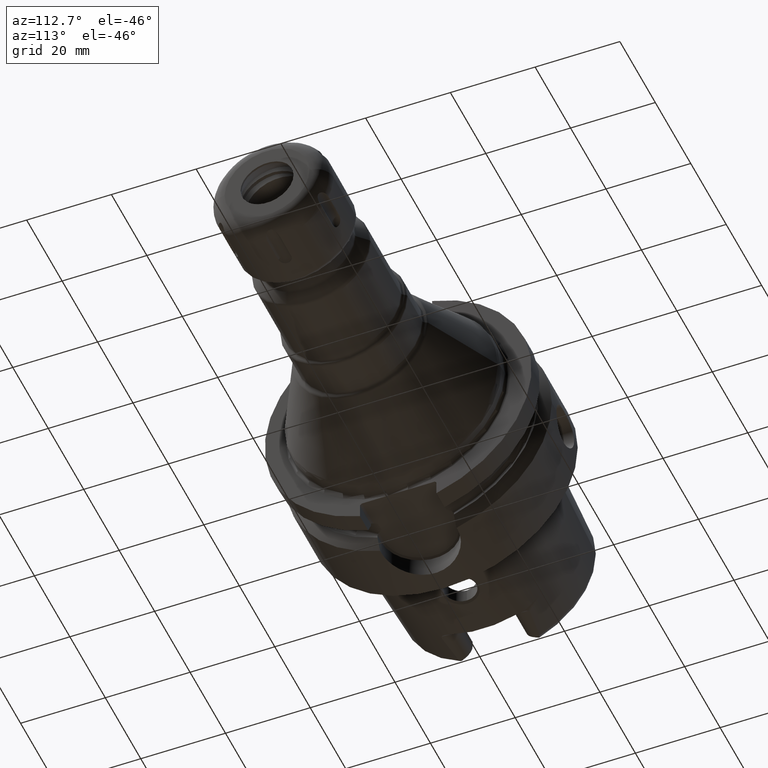
[diagram: clean part render]
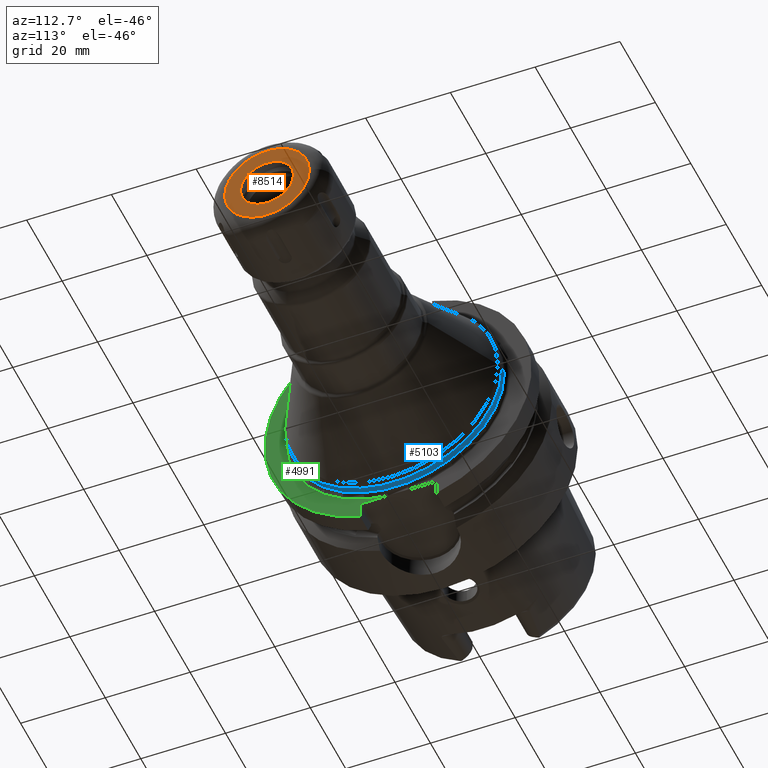
[diagram: same view with three faces highlighted in distinct colors, each labeled with its STEP entity id]
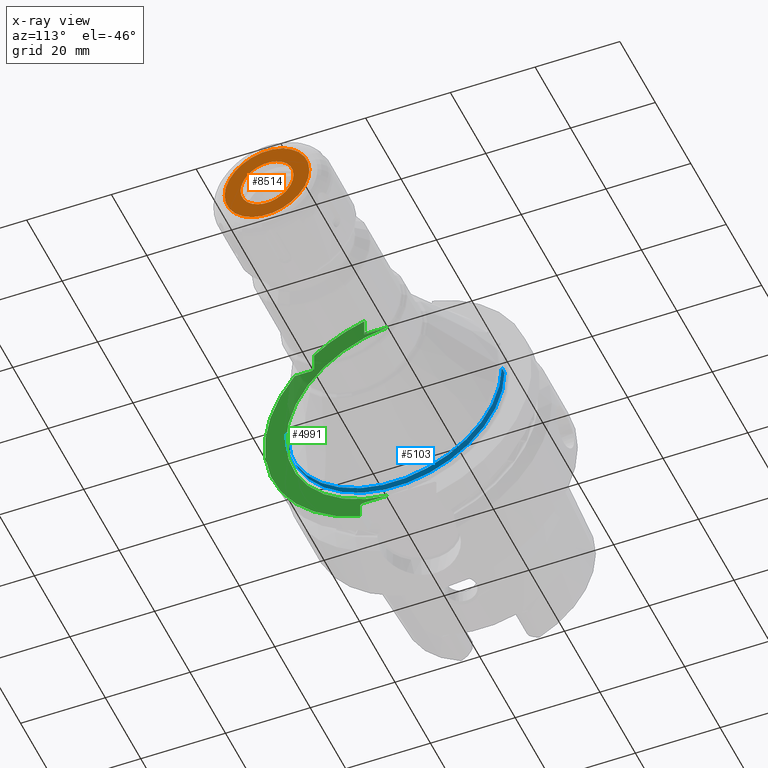
[diagram: x-ray of the same camera — body ghosted, the three highlighted faces saturated]
A machine part, auxiliary view with three faces highlighted in distinct colors.
The next image is the same camera in x-ray (body ghosted, the three faces saturated) — at least one of them is partly hidden behind the body in this view.
Their STEP definitions:

[orange] entity #8514 — the highlighted planar face has unit normal (-1, 0, 0).
#7259=CARTESIAN_POINT('',(1.78E1,0.E0,0.E0));
#7260=DIRECTION('',(1.E0,0.E0,0.E0));
#7261=DIRECTION('',(0.E0,1.E0,0.E0));
#7262=AXIS2_PLACEMENT_3D('',#7259,#7260,#7261);
#7341=CARTESIAN_POINT('',(1.78E1,0.E0,0.E0));
#7342=DIRECTION('',(-1.E0,0.E0,0.E0));
#7343=DIRECTION('',(0.E0,1.E0,0.E0));
#7344=AXIS2_PLACEMENT_3D('',#7341,#7342,#7343);
#7498=CARTESIAN_POINT('',(1.78E1,0.E0,0.E0));
#7499=DIRECTION('',(-1.E0,0.E0,0.E0));
#7500=DIRECTION('',(0.E0,1.E0,0.E0));
#7501=AXIS2_PLACEMENT_3D('',#7498,#7499,#7500);
#7503=CARTESIAN_POINT('',(1.78E1,0.E0,0.E0));
#7504=DIRECTION('',(-1.E0,0.E0,0.E0));
#7505=DIRECTION('',(0.E0,-1.E0,0.E0));
#7506=AXIS2_PLACEMENT_3D('',#7503,#7504,#7505);
#8041=CARTESIAN_POINT('',(1.78E1,1.E1,0.E0));
#8043=VERTEX_POINT('',#8041);
#8051=CARTESIAN_POINT('',(1.78E1,-1.E1,0.E0));
#8053=VERTEX_POINT('',#8051);
#8171=CARTESIAN_POINT('',(1.78E1,6.25E0,0.E0));
#8172=CARTESIAN_POINT('',(1.78E1,-6.25E0,0.E0));
#8173=VERTEX_POINT('',#8171);
#8174=VERTEX_POINT('',#8172);
#8499=CARTESIAN_POINT('',(1.78E1,0.E0,0.E0));
#8500=DIRECTION('',(-1.E0,0.E0,0.E0));
#8501=DIRECTION('',(0.E0,1.E0,0.E0));
#8502=AXIS2_PLACEMENT_3D('',#8499,#8500,#8501);
#8503=PLANE('',#8502);
#8504=ORIENTED_EDGE('',*,*,#8317,.F.);
#8505=ORIENTED_EDGE('',*,*,#8381,.T.);
#8506=EDGE_LOOP('',(#8504,#8505));
#8507=FACE_OUTER_BOUND('',#8506,.F.);
#8509=ORIENTED_EDGE('',*,*,#8508,.F.);
#8511=ORIENTED_EDGE('',*,*,#8510,.F.);
#8512=EDGE_LOOP('',(#8509,#8511));
#8513=FACE_BOUND('',#8512,.F.);
#8514=ADVANCED_FACE('',(#8507,#8513),#8503,.F.);
#7263=CIRCLE('',#7262,1.E1);
#7345=CIRCLE('',#7344,1.E1);
#7502=CIRCLE('',#7501,6.25E0);
#7507=CIRCLE('',#7506,6.25E0);
#8317=EDGE_CURVE('',#8043,#8053,#7263,.T.);
#8381=EDGE_CURVE('',#8043,#8053,#7345,.T.);
#8508=EDGE_CURVE('',#8173,#8174,#7502,.T.);
#8510=EDGE_CURVE('',#8174,#8173,#7507,.T.);

[blue] entity #5103 — the highlighted cylindrical surface (partial cylindrical patch) has radius 25.5 mm, axis along (1, 0, 0).
#1544=CARTESIAN_POINT('',(2.7E1,0.E0,0.E0));
#1545=DIRECTION('',(1.E0,0.E0,0.E0));
#1546=DIRECTION('',(0.E0,-1.E0,0.E0));
#1547=AXIS2_PLACEMENT_3D('',#1544,#1545,#1546);
#1598=CARTESIAN_POINT('',(2.850315899728E1,0.E0,0.E0));
#1599=DIRECTION('',(-1.E0,0.E0,0.E0));
#1600=DIRECTION('',(0.E0,1.E0,0.E0));
#1601=AXIS2_PLACEMENT_3D('',#1598,#1599,#1600);
#1603=DIRECTION('',(-1.E0,0.E0,1.065653858250E-12));
#1604=VECTOR('',#1603,1.503158997277E0);
#1605=CARTESIAN_POINT('',(2.850315899728E1,2.55E1,-1.211563834686E-13));
#1606=LINE('',#1605,#1604);
#1607=DIRECTION('',(-1.E0,0.E0,-1.574354096366E-12));
#1608=VECTOR('',#1607,1.503158997277E0);
#1609=CARTESIAN_POINT('',(2.850315899728E1,-2.55E1,1.315715395435E-13));
#1610=LINE('',#1609,#1608);
#3381=CARTESIAN_POINT('',(2.850315899728E1,2.55E1,0.E0));
#3382=CARTESIAN_POINT('',(2.850315899728E1,-2.55E1,0.E0));
#3383=VERTEX_POINT('',#3381);
#3384=VERTEX_POINT('',#3382);
#3394=CARTESIAN_POINT('',(2.7E1,-2.55E1,0.E0));
#3396=VERTEX_POINT('',#3394);
#3399=CARTESIAN_POINT('',(2.7E1,2.55E1,0.E0));
#3400=VERTEX_POINT('',#3399);
#5092=CARTESIAN_POINT('',(2.2638E1,0.E0,0.E0));
#5093=DIRECTION('',(1.E0,0.E0,0.E0));
#5094=DIRECTION('',(0.E0,-1.E0,0.E0));
#5095=AXIS2_PLACEMENT_3D('',#5092,#5093,#5094);
#5096=CYLINDRICAL_SURFACE('',#5095,2.55E1);
#5097=ORIENTED_EDGE('',*,*,#5083,.F.);
#5098=ORIENTED_EDGE('',*,*,#5058,.T.);
#5099=ORIENTED_EDGE('',*,*,#5020,.F.);
#5100=ORIENTED_EDGE('',*,*,#5054,.F.);
#5101=EDGE_LOOP('',(#5097,#5098,#5099,#5100));
#5102=FACE_OUTER_BOUND('',#5101,.F.);
#5103=ADVANCED_FACE('',(#5102),#5096,.T.);
#1548=CIRCLE('',#1547,2.55E1);
#1602=CIRCLE('',#1601,2.55E1);
#5020=EDGE_CURVE('',#3396,#3400,#1548,.T.);
#5054=EDGE_CURVE('',#3384,#3396,#1610,.T.);
#5058=EDGE_CURVE('',#3383,#3400,#1606,.T.);
#5083=EDGE_CURVE('',#3383,#3384,#1602,.T.);

[green] entity #4991 — the highlighted planar face has unit normal (1, 0, 0).
#1482=CARTESIAN_POINT('',(2.6E1,0.E0,0.E0));
#1483=DIRECTION('',(1.E0,0.E0,0.E0));
#1484=DIRECTION('',(0.E0,-1.E0,0.E0));
#1485=AXIS2_PLACEMENT_3D('',#1482,#1483,#1484);
#1487=DIRECTION('',(0.E0,-9.999999999996E-1,9.431598091803E-7));
#1488=VECTOR('',#1487,6.317547621911E0);
#1489=CARTESIAN_POINT('',(2.6E1,-2.299952378091E0,-2.640000595846E1));
#1490=LINE('',#1489,#1488);
#1491=DIRECTION('',(0.E0,0.E0,1.E0));
#1492=VECTOR('',#1491,3.381694679888E0);
#1493=CARTESIAN_POINT('',(2.6E1,-9.0175E0,-3.018169467989E1));
#1494=LINE('',#1493,#1492);
#1495=DIRECTION('',(0.E0,1.E0,0.E0));
#1496=VECTOR('',#1495,4.208689662367E0);
#1497=CARTESIAN_POINT('',(2.6E1,-2.445868966237E1,1.985E1));
#1498=LINE('',#1497,#1496);
#1499=DIRECTION('',(0.E0,0.E0,-1.E0));
#1500=VECTOR('',#1499,4.208689662367E0);
#1501=CARTESIAN_POINT('',(2.6E1,-1.985E1,2.445868966237E1));
#1502=LINE('',#1501,#1500);
#1503=DIRECTION('',(0.E0,0.E0,-1.E0));
#1504=VECTOR('',#1503,4.062594993697E0);
#1505=CARTESIAN_POINT('',(2.6E1,-8.0175E0,3.046259499370E1));
#1506=LINE('',#1505,#1504);
#1507=DIRECTION('',(0.E0,9.999999999995E-1,1.027498776599E-6));
#1508=VECTOR('',#1507,5.717547031017E0);
#1509=CARTESIAN_POINT('',(2.6E1,-8.0175E0,2.64E1));
#1510=LINE('',#1509,#1508);
#1511=CARTESIAN_POINT('',(2.6E1,0.E0,0.E0));
#1512=DIRECTION('',(1.E0,0.E0,0.E0));
#1513=DIRECTION('',(0.E0,-8.679474533254E-2,9.962262153661E-1));
#1514=AXIS2_PLACEMENT_3D('',#1511,#1512,#1513);
#1979=CARTESIAN_POINT('',(2.6E1,0.E0,0.E0));
#1980=DIRECTION('',(1.E0,0.E0,0.E0));
#1981=DIRECTION('',(0.E0,-7.764663384879E-1,6.301587301587E-1));
#1982=AXIS2_PLACEMENT_3D('',#1979,#1980,#1981);
#1988=CARTESIAN_POINT('',(2.6E1,0.E0,0.E0));
#1989=DIRECTION('',(1.E0,0.E0,0.E0));
#1990=DIRECTION('',(0.E0,-2.545238095238E-1,9.670665077364E-1));
#1991=AXIS2_PLACEMENT_3D('',#1988,#1989,#1990);
#2196=DIRECTION('',(0.E0,-7.071067811865E-1,-7.071067811865E-1));
#2197=VECTOR('',#2196,5.656854249492E-1);
#2198=CARTESIAN_POINT('',(2.6E1,-1.985E1,2.025E1));
#2199=LINE('',#2198,#2197);
#2277=DIRECTION('',(0.E0,7.071067811865E-1,7.071067811865E-1));
#2278=VECTOR('',#2277,5.656854249492E-1);
#2279=CARTESIAN_POINT('',(2.6E1,-9.0175E0,-2.68E1));
#2280=LINE('',#2279,#2278);
#3206=CARTESIAN_POINT('',(2.6E1,-9.0175E0,-2.68E1));
#3207=CARTESIAN_POINT('',(2.6E1,-8.6175E0,-2.64E1));
#3208=VERTEX_POINT('',#3206);
#3209=VERTEX_POINT('',#3207);
#3224=CARTESIAN_POINT('',(2.6E1,-1.985E1,2.025E1));
#3225=CARTESIAN_POINT('',(2.6E1,-2.025E1,1.985E1));
#3226=VERTEX_POINT('',#3224);
#3227=VERTEX_POINT('',#3225);
#3243=CARTESIAN_POINT('',(2.6E1,-8.0175E0,2.64E1));
#3245=VERTEX_POINT('',#3243);
#3313=CARTESIAN_POINT('',(2.6E1,-2.445868966237E1,1.985E1));
#3315=VERTEX_POINT('',#3313);
#3317=CARTESIAN_POINT('',(2.6E1,-1.985E1,2.445868966237E1));
#3319=VERTEX_POINT('',#3317);
#3337=CARTESIAN_POINT('',(2.6E1,-8.0175E0,3.046259499370E1));
#3338=VERTEX_POINT('',#3337);
#3339=CARTESIAN_POINT('',(2.6E1,-9.0175E0,-3.018169467989E1));
#3340=VERTEX_POINT('',#3339);
#3389=CARTESIAN_POINT('',(2.6E1,-2.65E1,0.E0));
#3390=CARTESIAN_POINT('',(2.6E1,-2.300061852184E0,-2.639999461129E1));
#3391=VERTEX_POINT('',#3389);
#3392=VERTEX_POINT('',#3390);
#3397=CARTESIAN_POINT('',(2.6E1,-2.300060751312E0,2.639999470720E1));
#3398=VERTEX_POINT('',#3397);
#4961=CARTESIAN_POINT('',(2.6E1,0.E0,0.E0));
#4962=DIRECTION('',(1.E0,0.E0,0.E0));
#4963=DIRECTION('',(0.E0,-1.E0,0.E0));
#4964=AXIS2_PLACEMENT_3D('',#4961,#4962,#4963);
#4965=PLANE('',#4964);
#4967=ORIENTED_EDGE('',*,*,#4966,.T.);
#4968=ORIENTED_EDGE('',*,*,#4935,.T.);
#4970=ORIENTED_EDGE('',*,*,#4969,.F.);
#4972=ORIENTED_EDGE('',*,*,#4971,.F.);
#4974=ORIENTED_EDGE('',*,*,#4973,.F.);
#4976=ORIENTED_EDGE('',*,*,#4975,.T.);
#4978=ORIENTED_EDGE('',*,*,#4977,.F.);
#4980=ORIENTED_EDGE('',*,*,#4979,.F.);
#4982=ORIENTED_EDGE('',*,*,#4981,.F.);
#4984=ORIENTED_EDGE('',*,*,#4983,.T.);
#4986=ORIENTED_EDGE('',*,*,#4985,.T.);
#4988=ORIENTED_EDGE('',*,*,#4987,.T.);
#4989=EDGE_LOOP('',(#4967,#4968,#4970,#4972,#4974,#4976,#4978,#4980,#4982,#4984,
#4986,#4988));
#4990=FACE_OUTER_BOUND('',#4989,.F.);
#4991=ADVANCED_FACE('',(#4990),#4965,.T.);
#1486=CIRCLE('',#1485,2.65E1);
#1515=CIRCLE('',#1514,2.65E1);
#1983=CIRCLE('',#1982,3.15E1);
#1992=CIRCLE('',#1991,3.15E1);
#4935=EDGE_CURVE('',#3392,#3209,#1490,.T.);
#4966=EDGE_CURVE('',#3391,#3392,#1486,.T.);
#4969=EDGE_CURVE('',#3208,#3209,#2280,.T.);
#4971=EDGE_CURVE('',#3340,#3208,#1494,.T.);
#4973=EDGE_CURVE('',#3315,#3340,#1983,.T.);
#4975=EDGE_CURVE('',#3315,#3227,#1498,.T.);
#4977=EDGE_CURVE('',#3226,#3227,#2199,.T.);
#4979=EDGE_CURVE('',#3319,#3226,#1502,.T.);
#4981=EDGE_CURVE('',#3338,#3319,#1992,.T.);
#4983=EDGE_CURVE('',#3338,#3245,#1506,.T.);
#4985=EDGE_CURVE('',#3245,#3398,#1510,.T.);
#4987=EDGE_CURVE('',#3398,#3391,#1515,.T.);